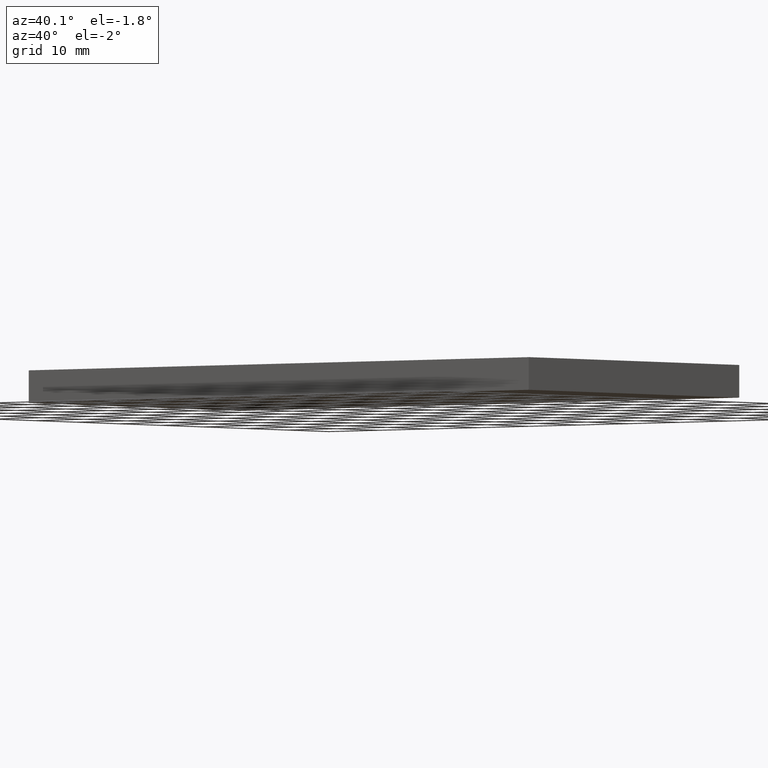
[diagram: clean part render]
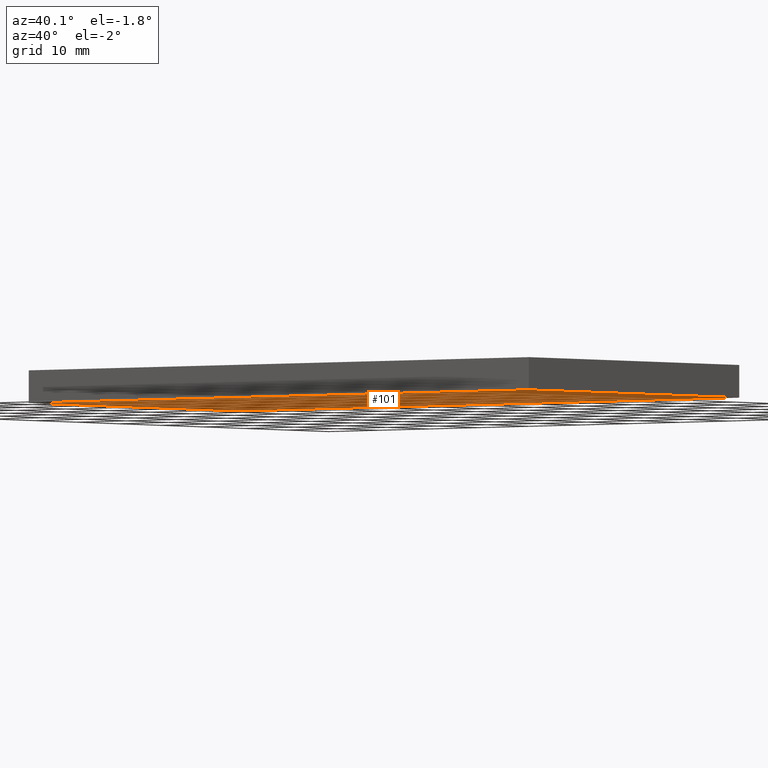
[diagram: same view with one face highlighted and labeled with its STEP entity id]
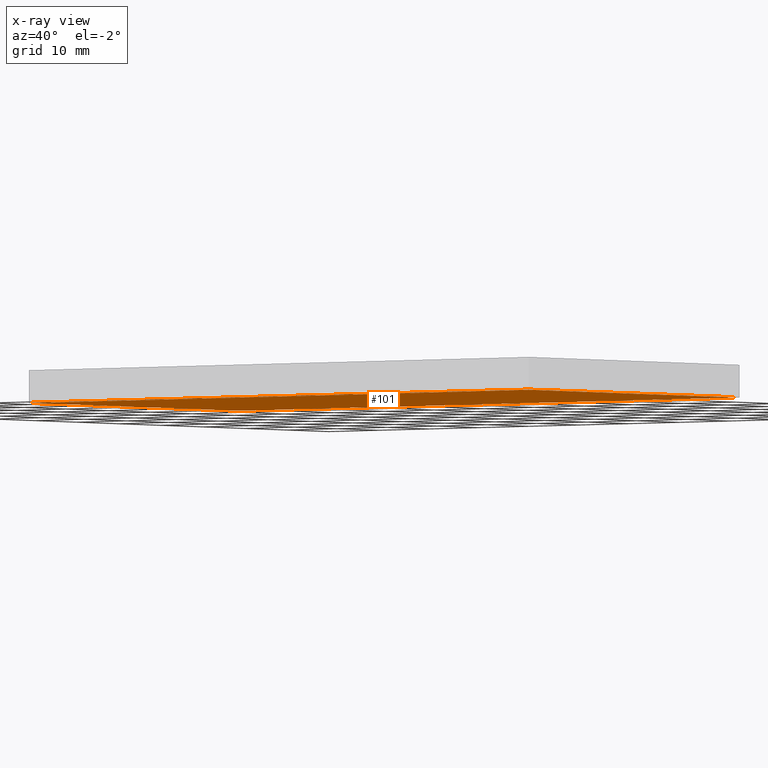
[diagram: x-ray of the same camera — body ghosted, the highlighted face saturated]
A machine part, auxiliary view. The second image highlights one B-rep face of the part: STEP entity #101.
The next image is the same camera in x-ray: the body ghosted, the highlighted face saturated — about 0% of this face is hidden behind the body in this view.
In plain terms, the highlighted planar face has unit normal (0, 0, 1).
Its self-contained STEP definition (entity closure, byte-faithful):
#15=FACE_OUTER_BOUND('',#21,.T.);
#21=EDGE_LOOP('',(#71,#72,#73,#74));
#27=LINE('',#163,#39);
#28=LINE('',#165,#40);
#29=LINE('',#167,#41);
#30=LINE('',#168,#42);
#39=VECTOR('',#137,10.);
#40=VECTOR('',#138,10.);
#41=VECTOR('',#139,10.);
#42=VECTOR('',#140,10.);
#51=VERTEX_POINT('',#161);
#52=VERTEX_POINT('',#162);
#53=VERTEX_POINT('',#164);
#54=VERTEX_POINT('',#166);
#59=EDGE_CURVE('',#51,#52,#27,.T.);
#60=EDGE_CURVE('',#53,#51,#28,.T.);
#61=EDGE_CURVE('',#54,#53,#29,.T.);
#62=EDGE_CURVE('',#52,#54,#30,.T.);
#71=ORIENTED_EDGE('',*,*,#59,.F.);
#72=ORIENTED_EDGE('',*,*,#60,.F.);
#73=ORIENTED_EDGE('',*,*,#61,.F.);
#74=ORIENTED_EDGE('',*,*,#62,.F.);
#95=PLANE('',#127);
#101=ADVANCED_FACE('',(#15),#95,.F.);
#127=AXIS2_PLACEMENT_3D('',#160,#135,#136);
#135=DIRECTION('center_axis',(0.,0.,1.));
#136=DIRECTION('ref_axis',(1.,0.,0.));
#137=DIRECTION('',(0.,1.,0.));
#138=DIRECTION('',(1.,0.,0.));
#139=DIRECTION('',(0.,-1.,0.));
#140=DIRECTION('',(-1.,-2.22044604925031E-16,0.));
#160=CARTESIAN_POINT('Origin',(3.33066907387547E-15,4.9455389278757E-15,
-2.5));
#161=CARTESIAN_POINT('',(50.,-25.,-2.5));
#162=CARTESIAN_POINT('',(50.,25.,-2.5));
#163=CARTESIAN_POINT('',(50.,-25.,-2.5));
#164=CARTESIAN_POINT('',(-50.,-25.,-2.5));
#165=CARTESIAN_POINT('',(-50.,-25.,-2.5));
#166=CARTESIAN_POINT('',(-50.,25.,-2.5));
#167=CARTESIAN_POINT('',(-50.,25.,-2.5));
#168=CARTESIAN_POINT('',(50.,25.,-2.5));